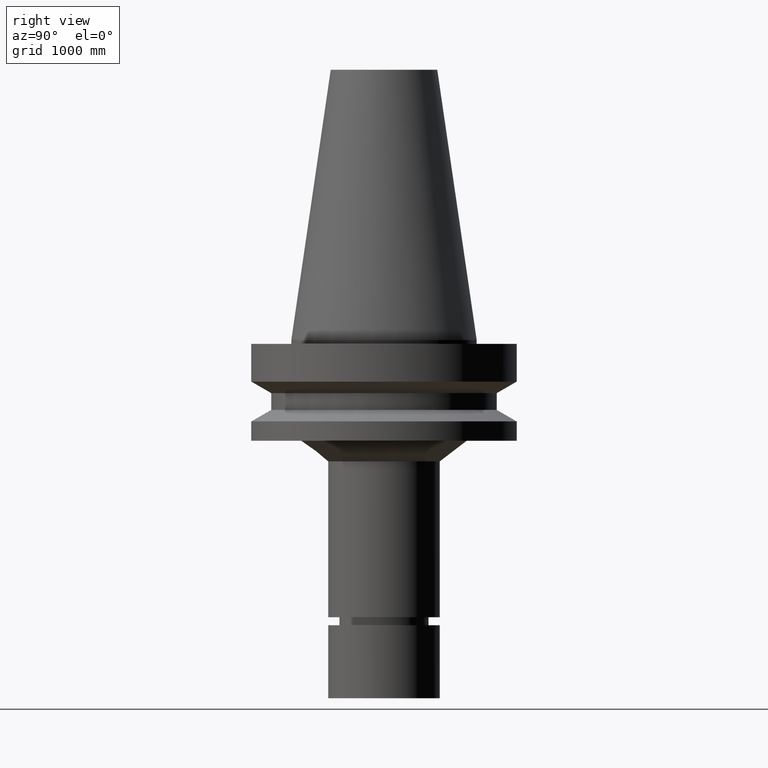
[diagram: clean part render]
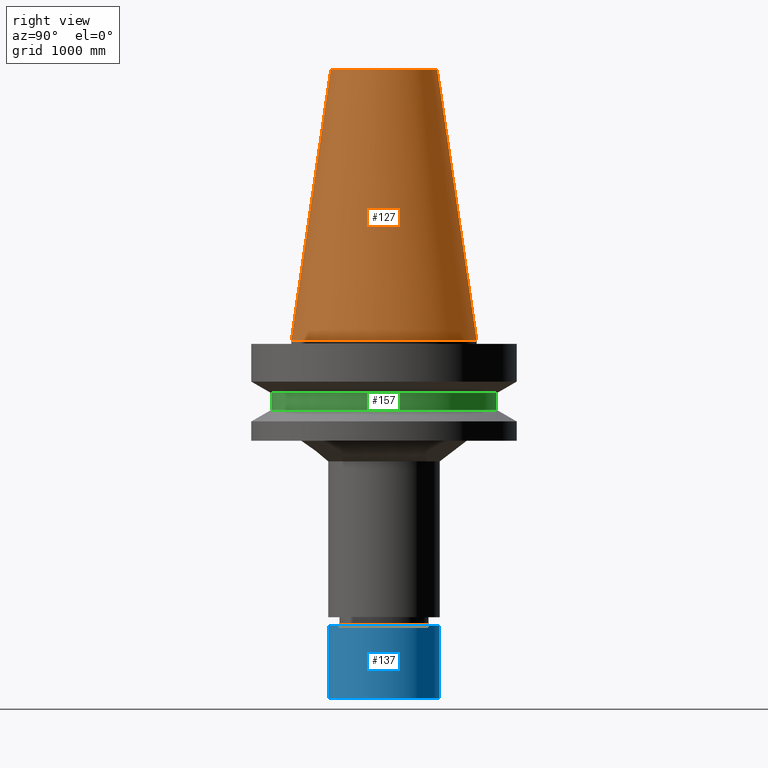
[diagram: same view with three faces highlighted in distinct colors, each labeled with its STEP entity id]
A machine part, right view with three faces highlighted in distinct colors.
Their STEP definitions:

[orange] entity #127 — the highlighted conical surface has half-angle 8.297 deg.
#100=EDGE_CURVE('Unnamed[1]',#239,#239,#240,.T.);
#127=ADVANCED_FACE('Unnamed[1]',(#278,#279),#280,.T.);
#131=EDGE_CURVE('Unnamed[1]',#285,#285,#286,.T.);
#239=VERTEX_POINT('',#424);
#240=CIRCLE('',#425,20.0791666651884);
#278=FACE_BOUND('',#473,.T.);
#279=FACE_BOUND('',#474,.T.);
#280=CONICAL_SURFACE('',#475,27.5020833325942,0.144812498253157);
#285=VERTEX_POINT('',#482);
#286=CIRCLE('',#483,34.925);
#424=CARTESIAN_POINT('',(-6.23345220766003E-015,20.0791666651884,101.8));
#425=AXIS2_PLACEMENT_3D('',#620,#621,#622);
#473=EDGE_LOOP('',(#660));
#474=EDGE_LOOP('',(#661));
#475=AXIS2_PLACEMENT_3D('',#662,#663,#664);
#482=CARTESIAN_POINT('',(-4.30483861169435E-031,34.925,4.27707894602213E-015));
#483=AXIS2_PLACEMENT_3D('',#668,#669,#670);
#620=CARTESIAN_POINT('',(-6.23345220766003E-015,1.30258929046129E-014,101.8));
#621=DIRECTION('',(-6.12323399573677E-017,-1.5261999847694E-017,1.0));
#622=DIRECTION('',(-5.76168069386895E-033,1.0,1.5261999847694E-017));
#660=ORIENTED_EDGE('',*,*,#100,.F.);
#661=ORIENTED_EDGE('',*,*,#131,.T.);
#662=CARTESIAN_POINT('',(-3.11672610383001E-015,1.38027286968626E-014,50.9));
#663=DIRECTION('',(6.12323399573677E-017,1.52619998476919E-017,-1.0));
#664=DIRECTION('',(-5.76168069388031E-033,1.0,1.52619998476919E-017));
#668=CARTESIAN_POINT('',(-1.79707006884519E-046,1.45795644891122E-014,1.78548169845537E-030));
#669=DIRECTION('',(-6.12323399573677E-017,-1.52619998477369E-017,1.0));
#670=DIRECTION('',(-5.761680693874E-033,1.0,1.52619998477369E-017));

[blue] entity #137 — the highlighted cylindrical surface (bore or boss wall) has radius 533.4 mm, axis along (0, 0, -1).
#117=EDGE_CURVE('Unnamed[1]',#263,#263,#264,.T.);
#137=ADVANCED_FACE('Unnamed[1]',(#294,#295),#296,.T.);
#180=EDGE_CURVE('Unnamed[1]',#362,#362,#363,.T.);
#263=VERTEX_POINT('',#454);
#264=CIRCLE('',#455,21.0);
#294=FACE_BOUND('',#493,.T.);
#295=FACE_BOUND('',#494,.T.);
#296=CYLINDRICAL_SURFACE('',#495,21.0);
#362=VERTEX_POINT('',#577);
#363=CIRCLE('',#578,21.0);
#454=CARTESIAN_POINT('',(8.26636589424463E-015,21.0,-135.0));
#455=AXIS2_PLACEMENT_3D('',#644,#645,#646);
#493=EDGE_LOOP('',(#678));
#494=EDGE_LOOP('',(#679));
#495=AXIS2_PLACEMENT_3D('',#680,#681,#682);
#577=CARTESIAN_POINT('',(6.58247654541702E-015,21.0,-107.5));
#578=AXIS2_PLACEMENT_3D('',#758,#759,#760);
#644=CARTESIAN_POINT('',(8.26636589424463E-015,1.66399344685563E-014,-135.0));
#645=DIRECTION('',(6.12323399573677E-017,1.52619998477336E-017,-1.0));
#646=DIRECTION('',(-5.76168069387474E-033,1.0,1.52619998477336E-017));
#678=ORIENTED_EDGE('',*,*,#117,.F.);
#679=ORIENTED_EDGE('',*,*,#180,.T.);
#680=CARTESIAN_POINT('',(7.42442121983083E-015,1.64300819706499E-014,-121.25));
#681=DIRECTION('',(6.12323399573677E-017,1.52619998477336E-017,-1.0));
#682=DIRECTION('',(-5.76168069387474E-033,1.0,1.52619998477336E-017));
#758=CARTESIAN_POINT('',(6.58247654541702E-015,1.62202294727436E-014,-107.5));
#759=DIRECTION('',(6.12323399573677E-017,1.52619998477336E-017,-1.0));
#760=DIRECTION('',(-5.76168069387474E-033,1.0,1.52619998477336E-017));

[green] entity #157 — the highlighted cylindrical surface (bore or boss wall) has radius 1079.5 mm, axis along (-0, -0, 1).
#113=EDGE_CURVE('Unnamed[1]',#257,#257,#258,.T.);
#129=EDGE_CURVE('Unnamed[1]',#282,#282,#283,.T.);
#157=ADVANCED_FACE('Unnamed[1]',(#326,#327),#328,.T.);
#257=VERTEX_POINT('',#446);
#258=CIRCLE('',#447,42.5);
#282=VERTEX_POINT('',#478);
#283=CIRCLE('',#479,42.5);
#326=FACE_BOUND('',#532,.T.);
#327=FACE_BOUND('',#533,.T.);
#328=CYLINDRICAL_SURFACE('',#534,42.5);
#446=CARTESIAN_POINT('',(1.61468902694397E-015,42.5,-26.3698729800001));
#447=AXIS2_PLACEMENT_3D('',#638,#639,#640);
#478=CARTESIAN_POINT('',(1.2264915470779E-015,42.5,-20.03012702));
#479=AXIS2_PLACEMENT_3D('',#665,#666,#667);
#532=EDGE_LOOP('',(#716));
#533=EDGE_LOOP('',(#717));
#534=AXIS2_PLACEMENT_3D('',#718,#719,#720);
#638=CARTESIAN_POINT('',(1.61468902694397E-015,1.49820214865177E-014,-26.3698729800001));
#639=DIRECTION('',(-6.12323399573677E-017,-1.52619998477571E-017,1.0));
#640=DIRECTION('',(-5.76168069387766E-033,1.0,1.52619998477571E-017));
#665=CARTESIAN_POINT('',(1.2264915470779E-015,1.48852642846416E-014,-20.03012702));
#666=DIRECTION('',(-6.12323399573677E-017,-1.52619998477571E-017,1.0));
#667=DIRECTION('',(-5.76168069387766E-033,1.0,1.52619998477571E-017));
#716=ORIENTED_EDGE('',*,*,#129,.F.);
#717=ORIENTED_EDGE('',*,*,#113,.T.);
#718=CARTESIAN_POINT('',(1.42059028701093E-015,1.49336428855796E-014,-23.2));
#719=DIRECTION('',(-6.12323399573677E-017,-1.52619998477571E-017,1.0));
#720=DIRECTION('',(-5.76168069387766E-033,1.0,1.52619998477571E-017));